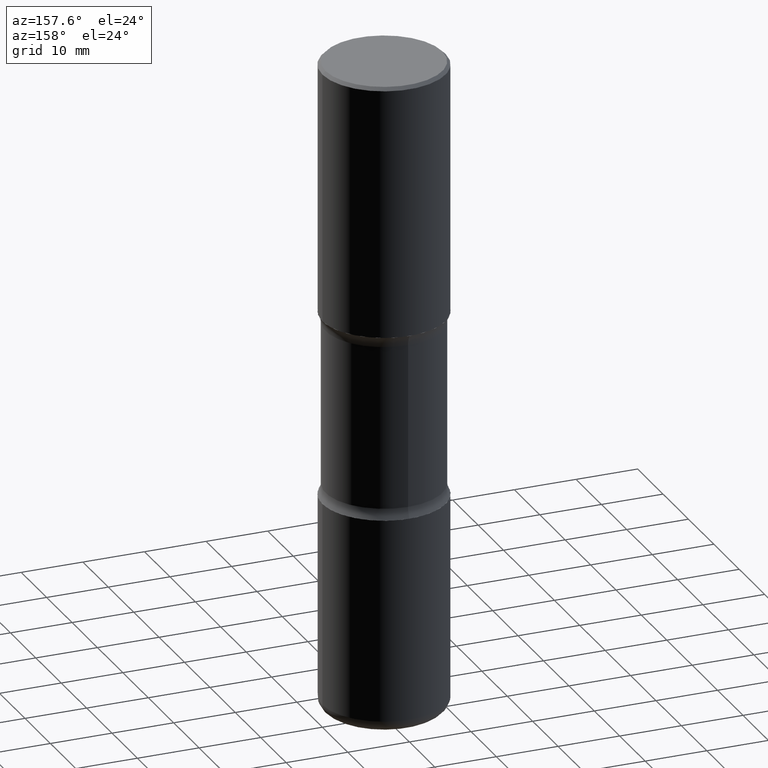
[diagram: clean part render]
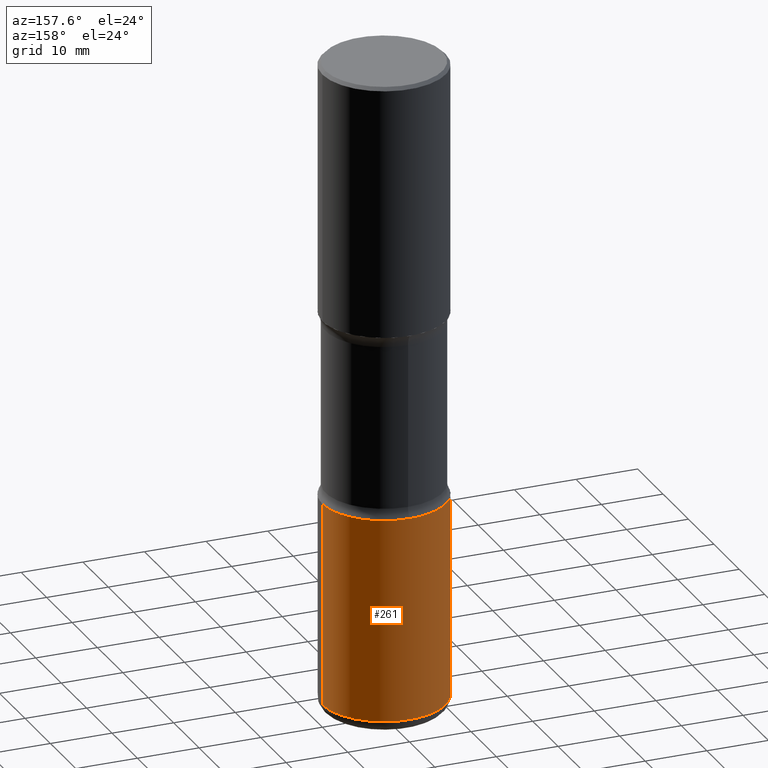
[diagram: same view with one face highlighted and labeled with its STEP entity id]
A machine part, auxiliary view. The second image highlights one B-rep face of the part: STEP entity #261.
In plain terms, the highlighted cylindrical surface (partial cylindrical patch) has radius 10 mm, axis along (-0, 0, 1).
Its self-contained STEP definition (entity closure, byte-faithful):
#15 = CARTESIAN_POINT ( 'NONE',  ( 0.000000000000000000, 0.000000000000000000, 0.000000000000000000 ) ) ;
#21 = LINE ( 'NONE', #273, #244 ) ;
#63 = CARTESIAN_POINT ( 'NONE',  ( 0.3937000000000002164, -2.749192406205084794E-15, 1.919750796630861012E-29 ) ) ;
#72 = DIRECTION ( 'NONE',  ( -2.445468806185136597E-29, 3.491481338843145583E-15, 1.000000000000000000 ) ) ;
#84 = EDGE_CURVE ( 'NONE', #547, #556, #496, .T. ) ;
#118 = AXIS2_PLACEMENT_3D ( 'NONE', #15, #212, #473 ) ;
#122 = CARTESIAN_POINT ( 'NONE',  ( 0.3937000000000001054, -1.704506274809834471E-14, -4.094500000000000028 ) ) ;
#125 = CARTESIAN_POINT ( 'NONE',  ( 0.3937000000000002164, -1.250858104453944804E-14, -2.795200000000000351 ) ) ;
#126 = AXIS2_PLACEMENT_3D ( 'NONE', #509, #232, #153 ) ;
#132 = VECTOR ( 'NONE', #287, 39.37007874015748143 ) ;
#152 = CARTESIAN_POINT ( 'NONE',  ( -0.3937000000000002164, -9.230222739426296007E-15, -2.795200000000000351 ) ) ;
#153 = DIRECTION ( 'NONE',  ( 1.000000000000000000, -6.982962677686269866E-15, 0.000000000000000000 ) ) ;
#157 = ORIENTED_EDGE ( 'NONE', *, *, #380, .T. ) ;
#177 = EDGE_CURVE ( 'NONE', #556, #406, #290, .T. ) ;
#185 = EDGE_CURVE ( 'NONE', #547, #559, #512, .T. ) ;
#206 = CARTESIAN_POINT ( 'NONE',  ( -0.3937000000000001054, -1.149846359120574434E-14, -4.094500000000000028 ) ) ;
#212 = DIRECTION ( 'NONE',  ( -2.445468806185136597E-29, 3.491481338843145583E-15, 1.000000000000000000 ) ) ;
#232 = DIRECTION ( 'NONE',  ( -2.445468806185136597E-29, 3.491481338843145583E-15, 1.000000000000000000 ) ) ;
#237 = DIRECTION ( 'NONE',  ( 1.000000000000000000, -6.982962677686265133E-15, 0.000000000000000000 ) ) ;
#244 = VECTOR ( 'NONE', #495, 39.37007874015748143 ) ;
#259 = FACE_OUTER_BOUND ( 'NONE', #323, .T. ) ;
#261 = ADVANCED_FACE ( 'NONE', ( #259 ), #300, .T. ) ;
#267 = ORIENTED_EDGE ( 'NONE', *, *, #177, .F. ) ;
#273 = CARTESIAN_POINT ( 'NONE',  ( -0.3937000000000002164, 2.797406750687515970E-15, -1.936584745033357576E-29 ) ) ;
#287 = DIRECTION ( 'NONE',  ( -2.445468806185136877E-29, 3.491481338843145188E-15, 1.000000000000000000 ) ) ;
#290 = CIRCLE ( 'NONE', #126, 0.3937000000000002164 ) ;
#300 = CYLINDRICAL_SURFACE ( 'NONE', #118, 0.3937000000000002164 ) ;
#305 = AXIS2_PLACEMENT_3D ( 'NONE', #449, #72, #237 ) ;
#323 = EDGE_LOOP ( 'NONE', ( #336, #157, #267, #403 ) ) ;
#336 = ORIENTED_EDGE ( 'NONE', *, *, #185, .T. ) ;
#380 = EDGE_CURVE ( 'NONE', #559, #406, #21, .T. ) ;
#403 = ORIENTED_EDGE ( 'NONE', *, *, #84, .F. ) ;
#406 = VERTEX_POINT ( 'NONE', #152 ) ;
#449 = CARTESIAN_POINT ( 'NONE',  ( 1.001297202692504215E-28, -1.429587034189326149E-14, -4.094500000000000028 ) ) ;
#473 = DIRECTION ( 'NONE',  ( 1.000000000000000000, -6.982962677686266711E-15, 4.876176775795935793E-29 ) ) ;
#495 = DIRECTION ( 'NONE',  ( -2.445468806185136877E-29, 3.491481338843145188E-15, 1.000000000000000000 ) ) ;
#496 = LINE ( 'NONE', #63, #132 ) ;
#509 = CARTESIAN_POINT ( 'NONE',  ( 6.835574407048695164E-29, -9.759388638334361670E-15, -2.795200000000000351 ) ) ;
#512 = CIRCLE ( 'NONE', #305, 0.3937000000000002164 ) ;
#547 = VERTEX_POINT ( 'NONE', #122 ) ;
#556 = VERTEX_POINT ( 'NONE', #125 ) ;
#559 = VERTEX_POINT ( 'NONE', #206 ) ;